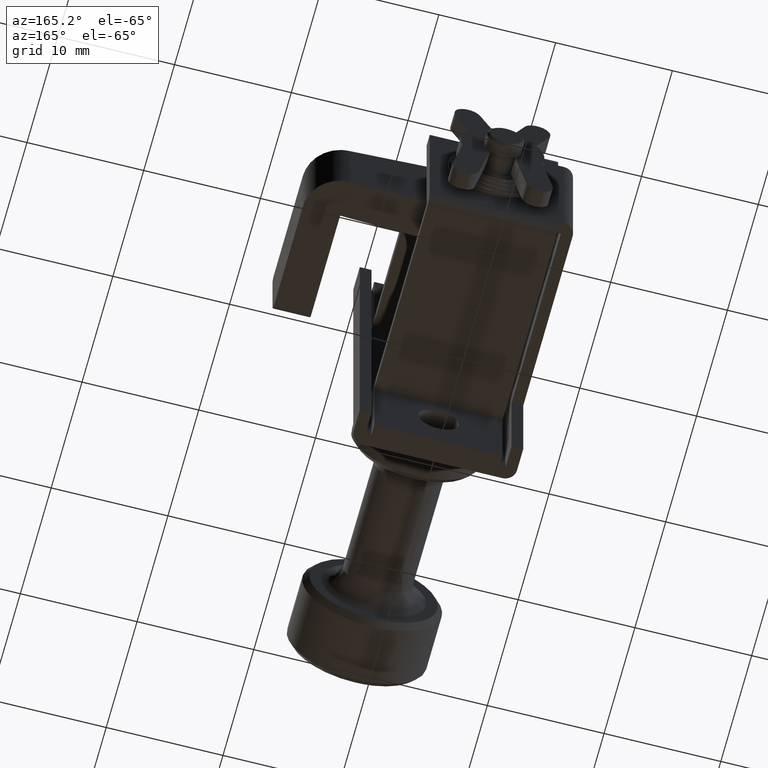
[diagram: clean part render]
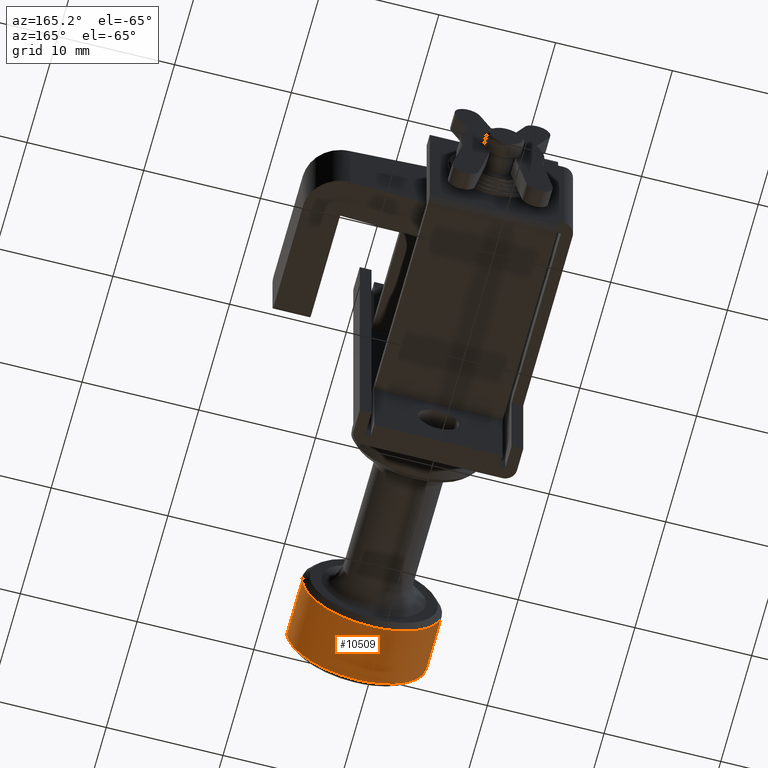
[diagram: same view with one face highlighted and labeled with its STEP entity id]
A machine part, auxiliary view. The second image highlights one B-rep face of the part: STEP entity #10509.
In plain terms, the highlighted face is a freeform B-spline surface patch.
Its self-contained STEP definition (entity closure, byte-faithful):
#10304=CARTESIAN_POINT('',(-19.499999996547078,-5.988808869438207,-0.366289890520761));
#10305=VERTEX_POINT('',#10304);
#10311=CARTESIAN_POINT('',(-19.500000000000000,0.0,-6.0));
#10312=VERTEX_POINT('',#10311);
#10313=CARTESIAN_POINT('',(-19.500000000000000,0.0,-6.0));
#10314=CARTESIAN_POINT('',(-19.500000000000004,-5.644237672812231,-6.000000000000001));
#10315=CARTESIAN_POINT('',(-19.499999996547078,-5.988808869438207,-0.366289890520761));
#10323=(BOUNDED_CURVE()B_SPLINE_CURVE(2,(#10313,#10314,#10315),.UNSPECIFIED.,.F.,.U.)B_SPLINE_CURVE_WITH_KNOTS((3,3),(0.500000000000000,0.739333001036058),.UNSPECIFIED.)CURVE()GEOMETRIC_REPRESENTATION_ITEM()RATIONAL_B_SPLINE_CURVE((1.0,0.719603947833062,0.976072124816336))REPRESENTATION_ITEM(''));
#10324=EDGE_CURVE('',#10312,#10305,#10323,.T.);
#10326=CARTESIAN_POINT('',(-19.500000000000000,5.960815221580239,-0.684603457613989));
#10327=VERTEX_POINT('',#10326);
#10328=CARTESIAN_POINT('',(-19.500000000000000,5.960815221580239,-0.684603457613989));
#10329=CARTESIAN_POINT('',(-19.500000000000007,5.350338993504610,-6.000000000000001));
#10330=CARTESIAN_POINT('',(-19.500000000000000,0.0,-6.0));
#10338=(BOUNDED_CURVE()B_SPLINE_CURVE(2,(#10328,#10329,#10330),.UNSPECIFIED.,.F.,.U.)B_SPLINE_CURVE_WITH_KNOTS((3,3),(0.269767725734668,0.500000000000000),.UNSPECIFIED.)CURVE()GEOMETRIC_REPRESENTATION_ITEM()RATIONAL_B_SPLINE_CURVE((0.957343795918542,0.730266112462741,1.0))REPRESENTATION_ITEM(''));
#10339=EDGE_CURVE('',#10327,#10312,#10338,.T.);
#10430=CARTESIAN_POINT('',(-19.375000000000000,5.960815160614282,-0.684603988442163));
#10431=CARTESIAN_POINT('',(-19.375000000000004,5.386890915516489,-5.681735759479245));
#10432=CARTESIAN_POINT('',(-19.375000000000000,0.366291237209142,-5.988808790531200));
#10433=CARTESIAN_POINT('',(-19.375000000000004,-5.622517553322059,-6.355100027740342));
#10434=CARTESIAN_POINT('',(-19.375000000000000,-5.988808790531200,-0.366291237209142));
#10435=CARTESIAN_POINT('',(-24.628125000000004,5.960815160614282,-0.684603988442163));
#10436=CARTESIAN_POINT('',(-24.628125000000001,5.386890915516489,-5.681735759479245));
#10437=CARTESIAN_POINT('',(-24.628125000000001,0.366291237209142,-5.988808790531200));
#10438=CARTESIAN_POINT('',(-24.628125000000011,-5.622517553322059,-6.355100027740342));
#10439=CARTESIAN_POINT('',(-24.628125000000001,-5.988808790531200,-0.366291237209142));
#10447=(BOUNDED_SURFACE()B_SPLINE_SURFACE(2,1,((#10430,#10435),(#10431,#10436),(#10432,#10437),(#10433,#10438),(#10434,#10439)),.UNSPECIFIED.,.F.,.F.,.U.)B_SPLINE_SURFACE_WITH_KNOTS((3,2,3),(2,2),(0.0,8.748190437319764,18.689315934274038),(0.0,5.253125000000011),.UNSPECIFIED.)GEOMETRIC_REPRESENTATION_ITEM()RATIONAL_B_SPLINE_SURFACE(((0.938140952186599,0.938140952186599),(0.742253967444162,0.742253967444162),(1.0,1.0),(0.707106781186548,0.707106781186548),(1.0,1.0)))REPRESENTATION_ITEM('')SURFACE());
#10448=CARTESIAN_POINT('',(-24.500000000000000,5.960815160613178,-0.684603988451778));
#10449=VERTEX_POINT('',#10448);
#10450=CARTESIAN_POINT('',(-24.500000000000000,0.0,-6.0));
#10451=VERTEX_POINT('',#10450);
#10452=CARTESIAN_POINT('',(-24.500000000000004,5.960815160613178,-0.684603988451778));
#10453=CARTESIAN_POINT('',(-24.500000000000000,5.350338034296107,-6.000000000000001));
#10454=CARTESIAN_POINT('',(-24.500000000000000,0.0,-6.0));
#10462=(BOUNDED_CURVE()B_SPLINE_CURVE(2,(#10452,#10453,#10454),.UNSPECIFIED.,.F.,.U.)B_SPLINE_CURVE_WITH_KNOTS((3,3),(0.269767755877155,0.500000000000000),.UNSPECIFIED.)CURVE()GEOMETRIC_REPRESENTATION_ITEM()RATIONAL_B_SPLINE_CURVE((0.957343736459587,0.730266147776862,1.0))REPRESENTATION_ITEM(''));
#10463=EDGE_CURVE('',#10449,#10451,#10462,.T.);
#10464=ORIENTED_EDGE('',*,*,#10463,.F.);
#10465=CARTESIAN_POINT('',(-19.500000000000000,5.960815221580239,-0.684603457613989));
#10466=CARTESIAN_POINT('',(-24.500000000000000,5.960815160613178,-0.684603988451778));
#10467=QUASI_UNIFORM_CURVE('',1,(#10465,#10466),.UNSPECIFIED.,.F.,.U.);
#10468=EDGE_CURVE('',#10327,#10449,#10467,.T.);
#10469=ORIENTED_EDGE('',*,*,#10468,.F.);
#10470=ORIENTED_EDGE('',*,*,#10339,.T.);
#10471=ORIENTED_EDGE('',*,*,#10324,.T.);
#10472=CARTESIAN_POINT('',(-24.499999999999989,-5.988808822970812,-0.366290706825421));
#10473=VERTEX_POINT('',#10472);
#10474=CARTESIAN_POINT('',(-19.499999996547078,-5.988808869438207,-0.366289890520761));
#10475=CARTESIAN_POINT('',(-24.499999999999989,-5.988808822970812,-0.366290706825421));
#10476=QUASI_UNIFORM_CURVE('',1,(#10474,#10475),.UNSPECIFIED.,.F.,.U.);
#10477=EDGE_CURVE('',#10305,#10473,#10476,.T.);
#10478=ORIENTED_EDGE('',*,*,#10477,.T.);
#10479=CARTESIAN_POINT('',(-24.499999999989821,-5.981504002402803,-0.470754574444891));
#10480=VERTEX_POINT('',#10479);
#10481=CARTESIAN_POINT('',(-24.499999999989818,-5.981504002402803,-0.470754574444891));
#10482=CARTESIAN_POINT('',(-24.500000000000004,-5.985612257020812,-0.418554250048221));
#10483=CARTESIAN_POINT('',(-24.499999999999989,-5.988808822970812,-0.366290706825422));
#10491=(BOUNDED_CURVE()B_SPLINE_CURVE(2,(#10481,#10482,#10483),.UNSPECIFIED.,.F.,.U.)B_SPLINE_CURVE_WITH_KNOTS((3,3),(0.736331300628352,0.739332992804311),.UNSPECIFIED.)CURVE()GEOMETRIC_REPRESENTATION_ITEM()RATIONAL_B_SPLINE_CURVE((0.969723356162602,0.972855507451258,0.976072107174129))REPRESENTATION_ITEM(''));
#10492=EDGE_CURVE('',#10480,#10473,#10491,.T.);
#10493=ORIENTED_EDGE('',*,*,#10492,.F.);
#10494=CARTESIAN_POINT('',(-24.500000000000000,0.0,-6.0));
#10495=CARTESIAN_POINT('',(-24.500000000000004,-5.546342949805955,-6.000000000000002));
#10496=CARTESIAN_POINT('',(-24.499999999989814,-5.981504002402803,-0.470754574444891));
#10504=(BOUNDED_CURVE()B_SPLINE_CURVE(2,(#10494,#10495,#10496),.UNSPECIFIED.,.F.,.U.)B_SPLINE_CURVE_WITH_KNOTS((3,3),(0.500000000000000,0.736331300628352),.UNSPECIFIED.)CURVE()GEOMETRIC_REPRESENTATION_ITEM()RATIONAL_B_SPLINE_CURVE((1.0,0.723120658610369,0.969723356162602))REPRESENTATION_ITEM(''));
#10505=EDGE_CURVE('',#10451,#10480,#10504,.T.);
#10506=ORIENTED_EDGE('',*,*,#10505,.F.);
#10507=EDGE_LOOP('',(#10464,#10469,#10470,#10471,#10478,#10493,#10506));
#10508=FACE_OUTER_BOUND('',#10507,.T.);
#10509=ADVANCED_FACE('',(#10508),#10447,.T.);